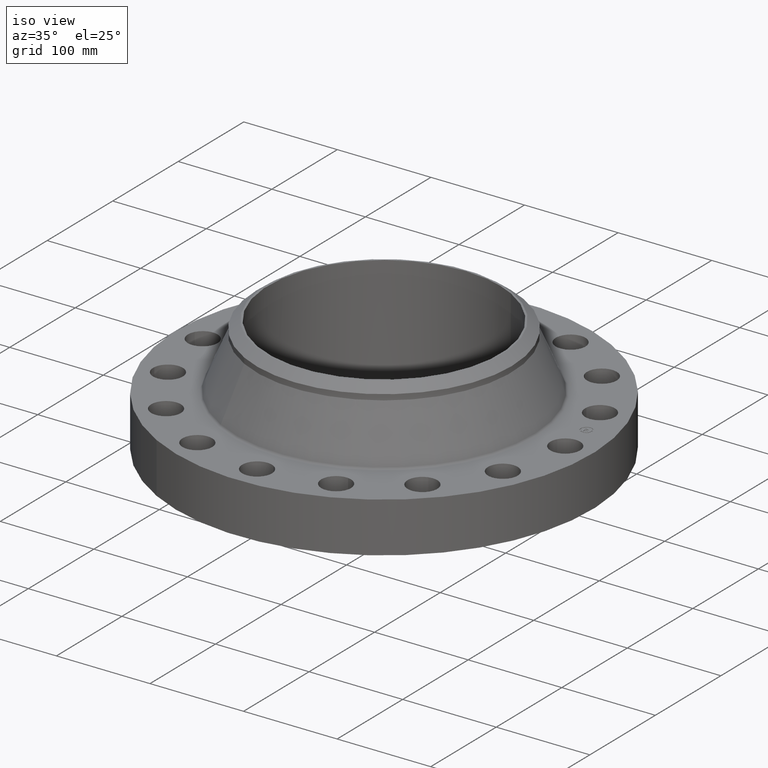
[diagram: clean part render]
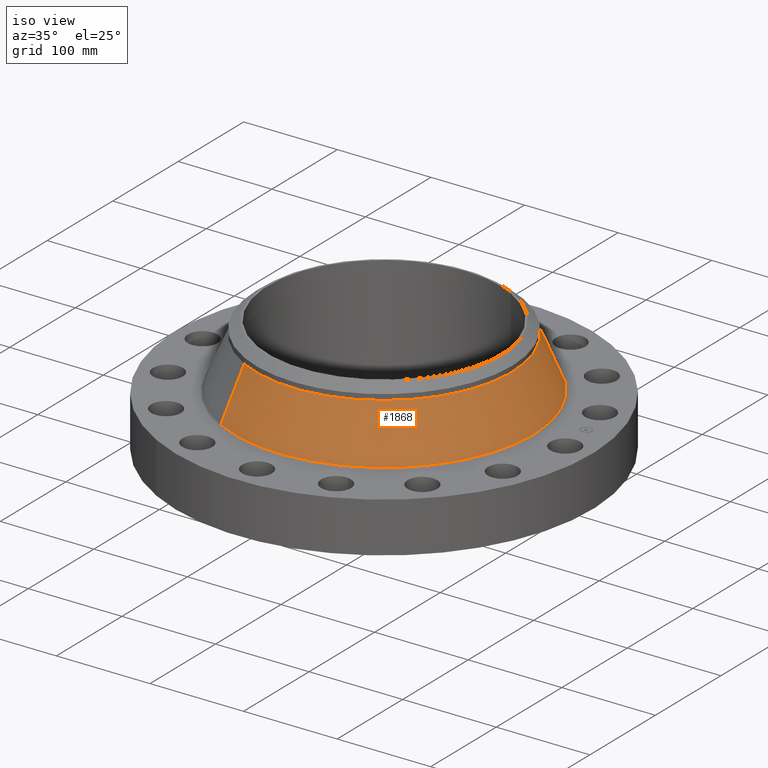
[diagram: same view with one face highlighted and labeled with its STEP entity id]
A machine part, iso view. The second image highlights one B-rep face of the part: STEP entity #1868.
In plain terms, the highlighted conical surface has half-angle 23.02 deg.
Its self-contained STEP definition (entity closure, byte-faithful):
#1687=AXIS2_PLACEMENT_3D('Circle Axis2P3D',#1685,#1686,$) ;
#1855=AXIS2_PLACEMENT_3D('Cone Axis2P3D',#1852,#1853,#1854) ;
#1859=AXIS2_PLACEMENT_3D('Circle Axis2P3D',#1857,#1858,$) ;
#1651=CARTESIAN_POINT('Vertex',(-3.01028976137,-5.51029844698,2.19307279798)) ;
#1658=CARTESIAN_POINT('Vertex',(3.01028976137,5.51029844698,2.19307279798)) ;
#1685=CARTESIAN_POINT('Axis2P3D Location',(0.,0.,2.19307279798)) ;
#1819=CARTESIAN_POINT('Line Origine',(-2.79360101569,-5.11365235858,3.25680413972)) ;
#1823=CARTESIAN_POINT('Vertex',(-2.57691227001,-4.71700627018,4.32053548146)) ;
#1830=CARTESIAN_POINT('Vertex',(2.57691227001,4.71700627018,4.32053548146)) ;
#1833=CARTESIAN_POINT('Line Origine',(2.79360101569,5.11365235858,3.25680413972)) ;
#1852=CARTESIAN_POINT('Axis2P3D Location',(0.,0.,4.32053548146)) ;
#1857=CARTESIAN_POINT('Axis2P3D Location',(0.,0.,4.32053548146)) ;
#1686=DIRECTION('Axis2P3D Direction',(-0.,0.,-0.0393700787402)) ;
#1820=DIRECTION('Vector Direction',(-0.00738126611167,-0.0135113169881,-0.0362348495766)) ;
#1834=DIRECTION('Vector Direction',(0.00738126611167,0.0135113169881,-0.0362348495766)) ;
#1853=DIRECTION('Axis2P3D Direction',(0.,0.,-0.0393700787402)) ;
#1854=DIRECTION('Axis2P3D XDirection',(0.0188750212049,0.0345504945626,0.)) ;
#1858=DIRECTION('Axis2P3D Direction',(-0.,0.,-0.0393700787402)) ;
#1821=VECTOR('Line Direction',#1820,0.0393700787402) ;
#1835=VECTOR('Line Direction',#1834,0.0393700787402) ;
#1863=ORIENTED_EDGE('',*,*,#1689,.F.) ;
#1864=ORIENTED_EDGE('',*,*,#1837,.T.) ;
#1865=ORIENTED_EDGE('',*,*,#1861,.T.) ;
#1866=ORIENTED_EDGE('',*,*,#1825,.F.) ;
#1868=ADVANCED_FACE('PartBody',(#1867),#1856,.T.) ;
#1688=CIRCLE('generated circle',#1687,6.27895161808) ;
#1860=CIRCLE('generated circle',#1859,5.37500000002) ;
#1856=CONICAL_SURFACE('Cone',#1855,5.37500000002,0.401783046419) ;
#1689=EDGE_CURVE('',#1659,#1652,#1688,.T.) ;
#1825=EDGE_CURVE('',#1652,#1824,#1822,.F.) ;
#1837=EDGE_CURVE('',#1659,#1831,#1836,.F.) ;
#1861=EDGE_CURVE('',#1831,#1824,#1860,.T.) ;
#1862=EDGE_LOOP('',(#1863,#1864,#1865,#1866)) ;
#1867=FACE_OUTER_BOUND('',#1862,.T.) ;
#1822=LINE('Line',#1819,#1821) ;
#1836=LINE('Line',#1833,#1835) ;
#1652=VERTEX_POINT('',#1651) ;
#1659=VERTEX_POINT('',#1658) ;
#1824=VERTEX_POINT('',#1823) ;
#1831=VERTEX_POINT('',#1830) ;